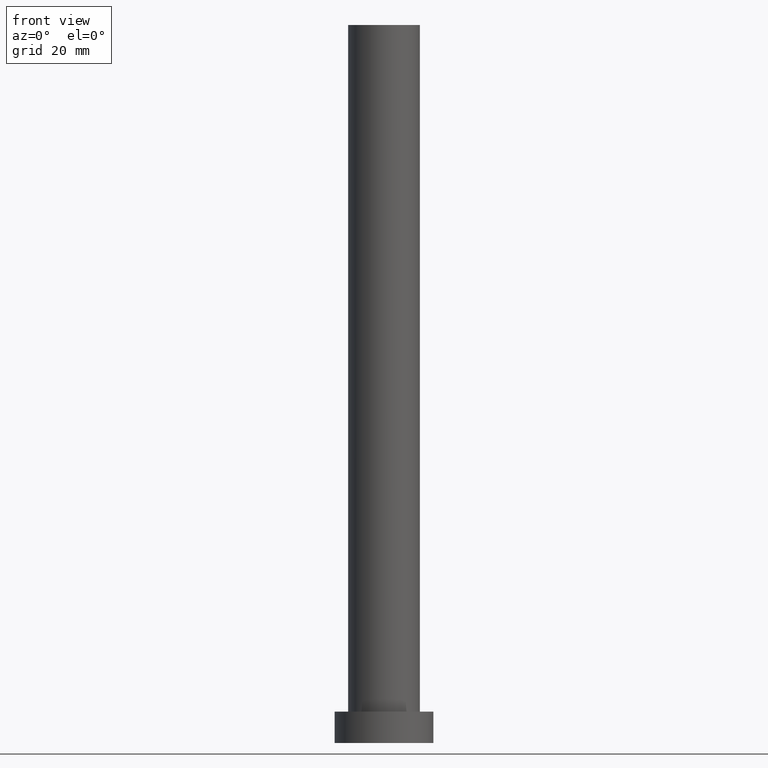
[diagram: clean part render]
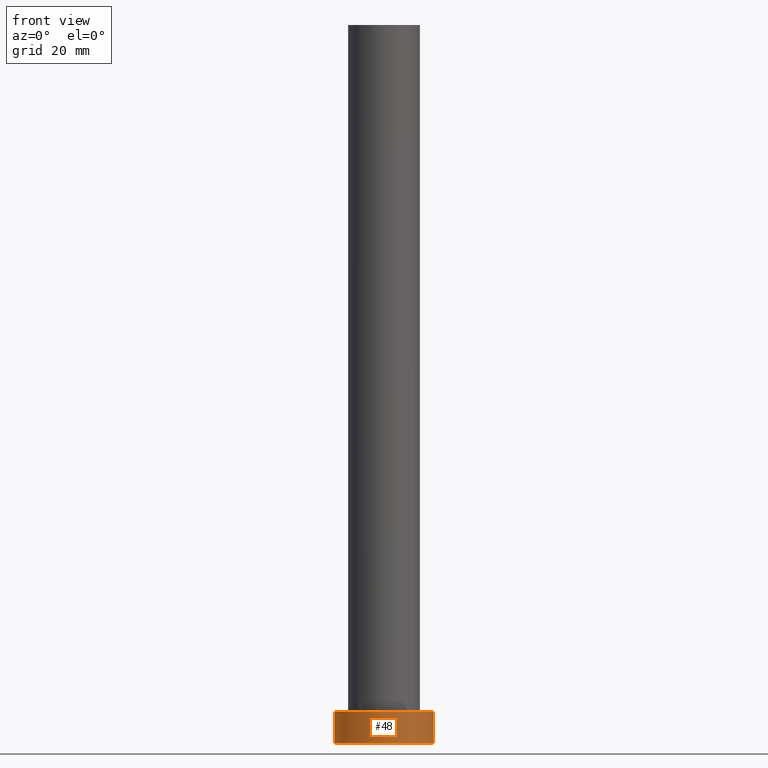
[diagram: same view with one face highlighted and labeled with its STEP entity id]
A machine part, front view. The second image highlights one B-rep face of the part: STEP entity #48.
In plain terms, the highlighted cylindrical surface (partial cylindrical patch) has radius 11 mm, axis along (-0, -0, -1).
Its self-contained STEP definition (entity closure, byte-faithful):
#4 = LINE ( 'NONE', #167, #87 ) ;
#9 = AXIS2_PLACEMENT_3D ( 'NONE', #211, #38, #11 ) ;
#11 = DIRECTION ( 'NONE',  ( -1.000000000000000000, 0.000000000000000000, 0.000000000000000000 ) ) ;
#13 = VERTEX_POINT ( 'NONE', #44 ) ;
#21 = ORIENTED_EDGE ( 'NONE', *, *, #144, .T. ) ;
#22 = DIRECTION ( 'NONE',  ( -0.000000000000000000, -0.000000000000000000, -1.000000000000000000 ) ) ;
#32 = EDGE_CURVE ( 'NONE', #162, #96, #4, .T. ) ;
#33 = ORIENTED_EDGE ( 'NONE', *, *, #32, .F. ) ;
#38 = DIRECTION ( 'NONE',  ( -0.000000000000000000, -0.000000000000000000, -1.000000000000000000 ) ) ;
#44 = CARTESIAN_POINT ( 'NONE',  ( -11.00000000000000000, 0.000000000000000000, 0.000000000000000000 ) ) ;
#48 = ADVANCED_FACE ( 'NONE', ( #68 ), #247, .T. ) ;
#66 = EDGE_CURVE ( 'NONE', #13, #96, #208, .T. ) ;
#67 = CIRCLE ( 'NONE', #165, 11.00000000000000000 ) ;
#68 = FACE_OUTER_BOUND ( 'NONE', #175, .T. ) ;
#78 = AXIS2_PLACEMENT_3D ( 'NONE', #95, #159, #154 ) ;
#87 = VECTOR ( 'NONE', #22, 1000.000000000000000 ) ;
#90 = CARTESIAN_POINT ( 'NONE',  ( -11.00000000000000000, 0.000000000000000000, 7.000000000000000000 ) ) ;
#92 = CARTESIAN_POINT ( 'NONE',  ( 11.00000000000000000, 1.347111479062088405E-15, 0.000000000000000000 ) ) ;
#95 = CARTESIAN_POINT ( 'NONE',  ( 0.000000000000000000, 0.000000000000000000, 0.000000000000000000 ) ) ;
#96 = VERTEX_POINT ( 'NONE', #92 ) ;
#99 = VERTEX_POINT ( 'NONE', #90 ) ;
#113 = LINE ( 'NONE', #169, #195 ) ;
#118 = ORIENTED_EDGE ( 'NONE', *, *, #147, .F. ) ;
#129 = CARTESIAN_POINT ( 'NONE',  ( 0.000000000000000000, 0.000000000000000000, 7.000000000000000000 ) ) ;
#144 = EDGE_CURVE ( 'NONE', #99, #13, #113, .T. ) ;
#147 = EDGE_CURVE ( 'NONE', #99, #162, #67, .T. ) ;
#149 = CARTESIAN_POINT ( 'NONE',  ( 11.00000000000000000, 1.347111479062088405E-15, 7.000000000000000000 ) ) ;
#150 = DIRECTION ( 'NONE',  ( 0.000000000000000000, 0.000000000000000000, 1.000000000000000000 ) ) ;
#154 = DIRECTION ( 'NONE',  ( 1.000000000000000000, 0.000000000000000000, 0.000000000000000000 ) ) ;
#159 = DIRECTION ( 'NONE',  ( 0.000000000000000000, 0.000000000000000000, 1.000000000000000000 ) ) ;
#162 = VERTEX_POINT ( 'NONE', #149 ) ;
#165 = AXIS2_PLACEMENT_3D ( 'NONE', #129, #150, #166 ) ;
#166 = DIRECTION ( 'NONE',  ( 1.000000000000000000, 0.000000000000000000, 0.000000000000000000 ) ) ;
#167 = CARTESIAN_POINT ( 'NONE',  ( 11.00000000000000000, 1.347111479062088405E-15, 7.000000000000000000 ) ) ;
#169 = CARTESIAN_POINT ( 'NONE',  ( -11.00000000000000000, 0.000000000000000000, 7.000000000000000000 ) ) ;
#175 = EDGE_LOOP ( 'NONE', ( #33, #118, #21, #216 ) ) ;
#195 = VECTOR ( 'NONE', #249, 1000.000000000000000 ) ;
#208 = CIRCLE ( 'NONE', #78, 11.00000000000000000 ) ;
#211 = CARTESIAN_POINT ( 'NONE',  ( 0.000000000000000000, 0.000000000000000000, 7.000000000000000000 ) ) ;
#216 = ORIENTED_EDGE ( 'NONE', *, *, #66, .T. ) ;
#247 = CYLINDRICAL_SURFACE ( 'NONE', #9, 11.00000000000000000 ) ;
#249 = DIRECTION ( 'NONE',  ( -0.000000000000000000, -0.000000000000000000, -1.000000000000000000 ) ) ;